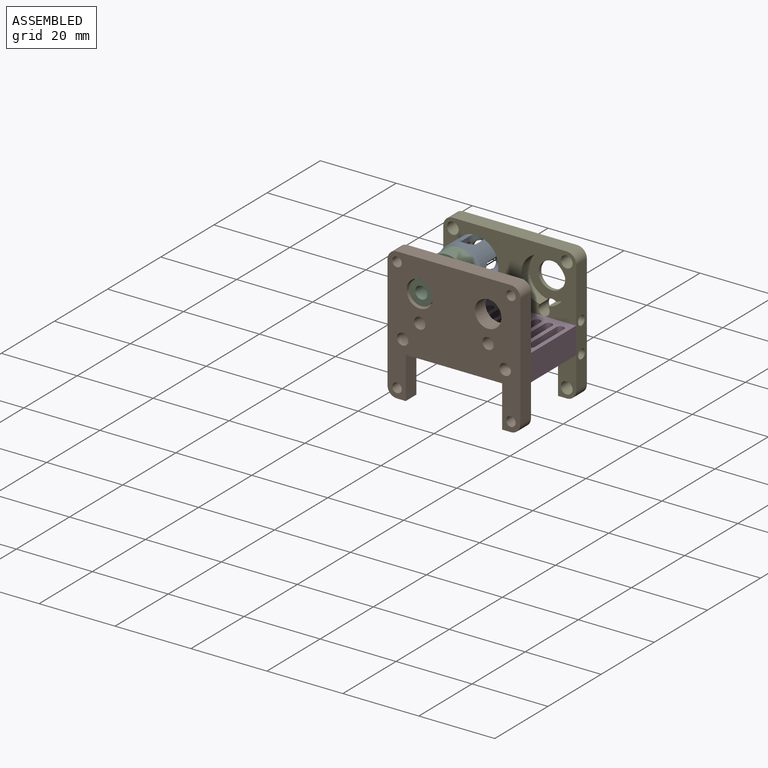
[diagram: assembled view]
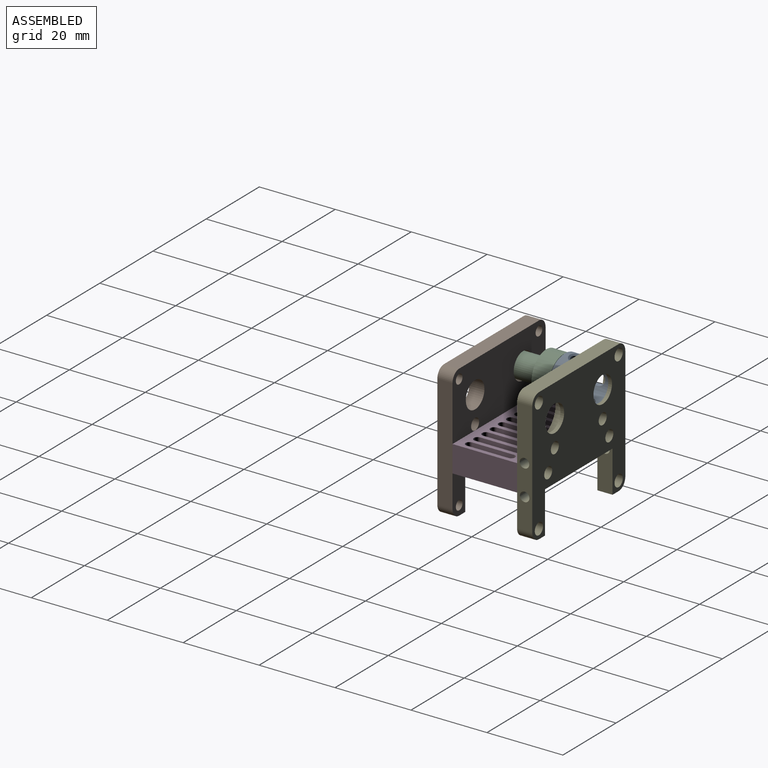
[diagram: assembled view, second angle]
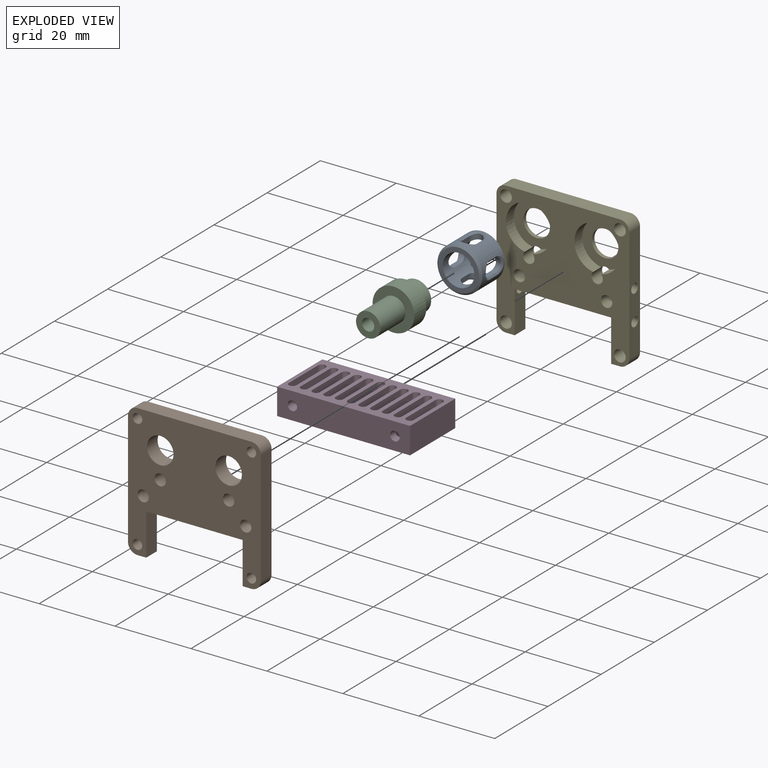
[diagram: exploded view]
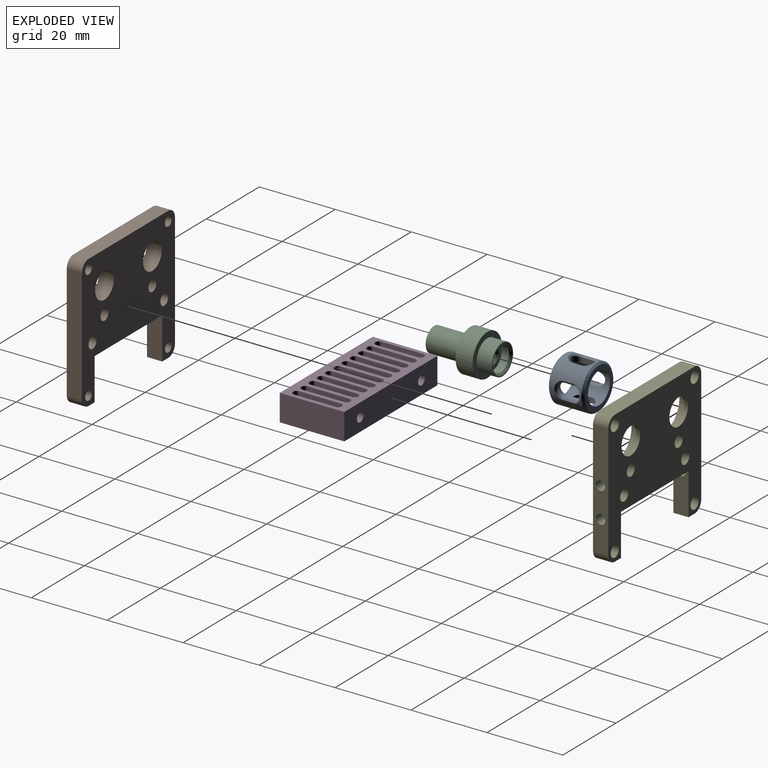
[diagram: exploded view, second angle]
ASSEMBLY  parts=5 mates=4
PART A: 38 faces, bbox 11.8x9.4x11.8 mm
  f0: cylinder r=4.15mm len=9.4mm, axis (0,-1,0), area 173.1mm2, adj f4,f5,f6,f7,f8,f9,f10,f11
  f1: cylinder r=5.9mm len=11.8mm, axis (0,-1,0), area 203.7mm2, adj f2,f3,f22,f23,f24,f25,f26,f27
  f2: cone r=5.4mm half-angle=45deg, axis (0,-1,0), area 25.1mm2, adj f1,f4
  f3: cone r=5.9mm half-angle=45deg, axis (0,1,0), area 25.1mm2, adj f1,f5
  f4: plane 10.8x10.8mm, normal (0,1,0), area 37.5mm2, adj f0,f2
  f5: plane 10.8x10.8mm, normal (0,-1,0), area 37.5mm2, adj f0,f3
  f6: cylinder r=1.75mm len=3.5mm, axis (1,0,0), area 7.4mm2, adj f0,f7,f9,f37
  f7: plane 2.5x1.35mm, normal (0,0,-1), area 3.4mm2, adj f0,f6,f8,f35
  f8: cylinder r=1.75mm len=3.5mm, axis (1,0,0), area 7.4mm2, adj f0,f7,f9,f34
  f9: plane 2.5x1.35mm, normal (0,0,1), area 3.4mm2, adj f0,f6,f8,f36
  f10: plane 2.5x1.35mm, normal (0,0,1), area 3.4mm2, adj f0,f11,f13,f27
  f11: cylinder r=1.75mm len=3.5mm, axis (1,0,0), area 7.4mm2, adj f0,f10,f12,f26
  f12: plane 2.5x1.35mm, normal (0,0,-1), area 3.4mm2, adj f0,f11,f13,f28
  f13: cylinder r=1.75mm len=3.5mm, axis (1,0,0), area 7.4mm2, adj f0,f10,f12,f29
  f14: cylinder r=1.75mm len=3.5mm, axis (0,0,1), area 6.3mm2, adj f0,f15,f17,f33
  f15: plane 2.5x1.35mm, normal (1,0,0), area 3.4mm2, adj f0,f14,f16,f31
  f16: cylinder r=1.75mm len=3.5mm, axis (0,0,1), area 6.3mm2, adj f0,f15,f17,f30
  f17: plane 2.5x1.35mm, normal (-1,0,0), area 3.4mm2, adj f0,f14,f16,f32
  f18: plane 2.5x1.35mm, normal (-1,0,0), area 3.4mm2, adj f0,f19,f21,f23
  f19: cylinder r=1.75mm len=3.5mm, axis (0,0,1), area 7.4mm2, adj f0,f18,f20,f22
  f20: plane 2.5x1.35mm, normal (1,0,0), area 3.4mm2, adj f0,f19,f21,f24
  f21: cylinder r=1.75mm len=3.5mm, axis (0,0,1), area 7.4mm2, adj f0,f18,f20,f25
  f22: bspline ~4.52x2.12mm, area 3.5mm2, adj f1,f19,f23,f24
  f23: plane 2.5x0.51mm, normal (-0.56,0,-0.83), area 1.5mm2, adj f1,f18,f22,f25
  f24: plane 2.5x0.51mm, normal (0.56,0,-0.83), area 1.5mm2, adj f1,f20,f22,f25
  f25: bspline ~4.52x2.12mm, area 3.5mm2, adj f1,f21,f23,f24
  f26: bspline ~4.52x2.12mm, area 3.5mm2, adj f1,f11,f27,f28
  f27: plane 2.5x0.51mm, normal (-0.83,0,0.56), area 1.5mm2, adj f1,f10,f26,f29
  f28: plane 2.5x0.51mm, normal (-0.83,0,-0.56), area 1.5mm2, adj f1,f12,f26,f29
  f29: bspline ~4.52x2.12mm, area 3.5mm2, adj f1,f13,f27,f28
  f30: bspline ~4.52x2.12mm, area 3.6mm2, adj f1,f16,f31,f32
  f31: plane 2.5x0.51mm, normal (0.56,0,0.83), area 1.5mm2, adj f1,f15,f30,f33
  f32: plane 2.5x0.51mm, normal (-0.56,0,0.83), area 1.5mm2, adj f1,f17,f30,f33
  f33: bspline ~4.52x2.12mm, area 3.6mm2, adj f1,f14,f31,f32
  f34: bspline ~4.52x2.12mm, area 3.5mm2, adj f1,f8,f35,f36
  f35: plane 2.5x0.51mm, normal (0.83,0,-0.56), area 1.5mm2, adj f1,f7,f34,f37
  f36: plane 2.5x0.51mm, normal (0.83,0,0.56), area 1.5mm2, adj f1,f9,f34,f37
  f37: bspline ~4.52x2.12mm, area 3.5mm2, adj f1,f6,f35,f36
PART B: 28 faces, bbox 35x4x35 mm
  f0: cylinder r=1.5mm len=4mm, axis (0,1,0), area 37.7mm2, adj f19,f20
  f1: cylinder r=1.5mm len=4mm, axis (0,1,0), area 37.7mm2, adj f19,f20
  f2: cylinder r=1.03mm len=5mm, axis (0,0,-1), area 32.2mm2, adj f3,f23
  f3: cone r=1.03mm half-angle=59deg, axis (0,0,-1), area 3.9mm2, adj f2
  f4: cylinder r=1.03mm len=5mm, axis (0,0,-1), area 32.2mm2, adj f5,f23
  f5: cone r=1.03mm half-angle=59deg, axis (0,0,-1), area 3.9mm2, adj f4
  f6: cylinder r=1.25mm len=4mm, axis (0,1,0), area 31.4mm2, adj f19,f20
  f7: cylinder r=1.25mm len=4mm, axis (0,1,0), area 31.4mm2, adj f19,f20
  f8: cylinder r=1.25mm len=4mm, axis (0,1,0), area 31.4mm2, adj f19,f20
  f9: cylinder r=1.25mm len=4mm, axis (0,1,0), area 31.4mm2, adj f19,f20
  f10: cylinder r=1.5mm len=4mm, axis (0,1,0), area 37.7mm2, adj f19,f20
  f11: cylinder r=1.5mm len=4mm, axis (0,1,0), area 37.7mm2, adj f19,f20
  f12: cylinder r=3.5mm len=7mm, axis (0,1,0), area 88mm2, adj f19,f20
  f13: cylinder r=3.5mm len=7mm, axis (0,1,0), area 88mm2, adj f19,f20
  f14: plane 4x2.3mm, normal (0,0,-1), area 9.2mm2, adj f19,f20,f21,f24
  f15: plane 30x4mm, normal (1,0,0), area 120mm2, adj f19,f20,f26,f27
  f16: plane 4x2.3mm, normal (0,0,-1), area 9.2mm2, adj f19,f20,f22,f27
  f17: plane 30x4mm, normal (-1,0,0), area 120mm2, adj f19,f20,f24,f25
  f18: plane 30x4mm, normal (0,0,1), area 120mm2, adj f19,f20,f25,f26
  f19: plane 35x35mm, normal (0,1,0), area 815.4mm2, adj f0,f1,f6,f7,f8,f9,f10,f11
  f20: plane 35x35mm, normal (0,-1,0), area 815.4mm2, adj f0,f1,f6,f7,f8,f9,f10,f11
  f21: plane 11x4mm, normal (1,0,0), area 44mm2, adj f14,f19,f20,f23
  f22: plane 11x4mm, normal (-1,0,0), area 44mm2, adj f16,f19,f20,f23
  f23: plane 25.4x4mm, normal (0,0,-1), area 95mm2, adj f2,f4,f19,f20,f21,f22
  f24: cylinder r=2.5mm len=4mm, axis (0,-1,0), area 15.7mm2, adj f14,f17,f19,f20
  f25: cylinder r=2.5mm len=4mm, axis (0,-1,0), area 15.7mm2, adj f17,f18,f19,f20
  f26: cylinder r=2.5mm len=4mm, axis (0,-1,0), area 15.7mm2, adj f15,f18,f19,f20
  f27: cylinder r=2.5mm len=4mm, axis (0,-1,0), area 15.7mm2, adj f15,f16,f19,f20
PART C: 12 faces, bbox 11x18x11 mm
  f0: cylinder r=3.2mm len=6.4mm, axis (0,-1,0), area 40.2mm2, adj f1,f7
  f1: cone r=3.7mm half-angle=45deg, axis (0,1,0), area 15.3mm2, adj f0,f11
  f2: cylinder r=4mm len=8mm, axis (0,-1,0), area 100.5mm2, adj f10,f11
  f3: cylinder r=5.5mm len=11mm, axis (0,-1,0), area 155.5mm2, adj f9,f10
  f4: cylinder r=3.2mm len=9.5mm, axis (0,-1,0), area 191mm2, adj f8,f9
  f5: cylinder r=1.6mm len=15mm, axis (0,-1,0), area 150.8mm2, adj f6,f8
  f6: cone r=2.1mm half-angle=45deg, axis (0,1,0), area 8.2mm2, adj f5,f7
  f7: plane 6.4x6.4mm, normal (0,1,0), area 18.3mm2, adj f0,f6
  f8: plane 6.4x6.4mm, normal (0,-1,0), area 24.1mm2, adj f4,f5
  f9: plane 11x11mm, normal (0,-1,0), area 62.9mm2, adj f3,f4
  f10: plane 11x11mm, normal (0,1,0), area 44.8mm2, adj f2,f3
  f11: plane 8x8mm, normal (0,1,0), area 7.3mm2, adj f1,f2
PART D: 58 faces, bbox 37.5x19.5x9.5 mm
  f0: cylinder r=1.25mm len=5mm, axis (0,1,0), area 27mm2, adj f6,f14,f50,f57
  f1: cylinder r=1.25mm len=5mm, axis (0,1,0), area 25.8mm2, adj f7,f14,f20,f22,f23,f56
  f2: cone r=1.25mm half-angle=59deg, axis (0,-1,0), area 2.9mm2, adj f3,f51,f53
  f3: cylinder r=1.25mm len=5mm, axis (0,-1,0), area 24.1mm2, adj f2,f8,f15,f51,f53,f54
  f4: cone r=1.25mm half-angle=59deg, axis (0,-1,0), area 2.8mm2, adj f5,f17,f21
  f5: cylinder r=1.25mm len=5mm, axis (0,-1,0), area 24.4mm2, adj f4,f9,f15,f17,f18,f21
  f6: cylinder r=1mm len=7mm, axis (0,0,-1), area 17.8mm2, adj f0,f11,f13,f50,f51
  f7: cylinder r=1mm len=7mm, axis (0,0,-1), area 18.1mm2, adj f1,f11,f13,f20,f21
  f8: cylinder r=1mm len=7mm, axis (0,0,-1), area 19.4mm2, adj f3,f11,f13,f50,f51
  f9: cylinder r=1mm len=7mm, axis (0,0,-1), area 18.9mm2, adj f5,f11,f13,f20,f21
  f10: plane 17x7mm, normal (-1,0,0), area 119mm2, adj f11,f13,f14,f15
  f11: plane 35x17mm, normal (0,0,1), area 318.4mm2, adj f6,f7,f8,f9,f10,f12,f14,f15
  f12: plane 17x7mm, normal (1,0,0), area 119mm2, adj f11,f13,f14,f15
  f13: plane 35x17mm, normal (0,0,-1), area 318.4mm2, adj f6,f7,f8,f9,f10,f12,f14,f15
  f14: plane 35x7mm, normal (0,1,0), area 235.2mm2, adj f0,f1,f10,f11,f12,f13
  f15: plane 35x7mm, normal (0,-1,0), area 235.2mm2, adj f3,f5,f10,f11,f12,f13
  f16: plane 11x7mm, normal (1,0,0), area 77mm2, adj f11,f13,f18,f19
  f17: plane 11x7mm, normal (-1,0,0), area 73.9mm2, adj f4,f5,f11,f13,f18,f19
  f18: cylinder r=1mm len=7mm, axis (0,0,-1), area 21.1mm2, adj f5,f11,f13,f16,f17
  f19: cylinder r=1mm len=7mm, axis (0,0,-1), area 22mm2, adj f11,f13,f16,f17
  f20: plane 11x7mm, normal (-1,0,0), area 70.8mm2, adj f1,f7,f9,f11,f13,f56
  f21: plane 11x7mm, normal (1,0,0), area 71.1mm2, adj f4,f5,f7,f9,f11,f13
  f22: cylinder r=1mm len=7mm, axis (0,0,-1), area 21.7mm2, adj f1,f11,f13,f23,f25
  f23: plane 11.16x7.16mm, normal (1,0,0), area 75.3mm2, adj f1,f11,f13,f22,f24,f56
  f24: cylinder r=1mm len=7mm, axis (0,0,-1), area 22mm2, adj f11,f13,f23,f25
  f25: plane 11x7mm, normal (-1,0,0), area 77mm2, adj f11,f13,f22,f24
  f26: cylinder r=1mm len=7mm, axis (0,0,-1), area 22mm2, adj f11,f13,f27,f29
  f27: plane 11x7mm, normal (1,0,0), area 77mm2, adj f11,f13,f26,f28
  f28: cylinder r=1mm len=7mm, axis (0,0,-1), area 22mm2, adj f11,f13,f27,f29
  f29: plane 11x7mm, normal (-1,0,0), area 77mm2, adj f11,f13,f26,f28
  f30: cylinder r=1mm len=7mm, axis (0,0,-1), area 22mm2, adj f11,f13,f31,f33
  f31: plane 11x7mm, normal (1,0,0), area 77mm2, adj f11,f13,f30,f32
  f32: cylinder r=1mm len=7mm, axis (0,0,-1), area 22mm2, adj f11,f13,f31,f33
  f33: plane 11x7mm, normal (-1,0,0), area 77mm2, adj f11,f13,f30,f32
  f34: cylinder r=1mm len=7mm, axis (0,0,-1), area 22mm2, adj f11,f13,f35,f37
  f35: plane 11x7mm, normal (1,0,0), area 77mm2, adj f11,f13,f34,f36
  f36: cylinder r=1mm len=7mm, axis (0,0,-1), area 22mm2, adj f11,f13,f35,f37
  f37: plane 11x7mm, normal (-1,0,0), area 77mm2, adj f11,f13,f34,f36
  f38: cylinder r=1mm len=7mm, axis (0,0,-1), area 22mm2, adj f11,f13,f39,f41
  f39: plane 11x7mm, normal (1,0,0), area 77mm2, adj f11,f13,f38,f40
  f40: cylinder r=1mm len=7mm, axis (0,0,-1), area 22mm2, adj f11,f13,f39,f41
  f41: plane 11x7mm, normal (-1,0,0), area 77mm2, adj f11,f13,f38,f40
  f42: cylinder r=1mm len=7mm, axis (0,0,-1), area 22mm2, adj f11,f13,f43,f45
  f43: plane 11x7mm, normal (1,0,0), area 77mm2, adj f11,f13,f42,f44
  f44: cylinder r=1mm len=7mm, axis (0,0,-1), area 22mm2, adj f11,f13,f43,f45
  f45: plane 11x7mm, normal (-1,0,0), area 77mm2, adj f11,f13,f42,f44
  f46: cylinder r=1mm len=7mm, axis (0,0,-1), area 22mm2, adj f11,f13,f47,f49
  f47: plane 11x7mm, normal (1,0,0), area 77mm2, adj f11,f13,f46,f48
  f48: cylinder r=1mm len=7mm, axis (0,0,-1), area 22mm2, adj f11,f13,f47,f49
  f49: plane 11x7mm, normal (-1,0,0), area 77mm2, adj f11,f13,f46,f48
  f50: plane 13.47x9.47mm, normal (1,0,0), area 71.2mm2, adj f0,f6,f8,f11,f13,f57
  f51: plane 11x7mm, normal (-1,0,0), area 71.2mm2, adj f2,f3,f6,f8,f11,f13
  f52: cylinder r=1mm len=7mm, axis (0,0,-1), area 22mm2, adj f11,f13,f53,f55
  f53: plane 11x7mm, normal (1,0,0), area 73.3mm2, adj f2,f3,f11,f13,f52,f54
  f54: cylinder r=1mm len=7mm, axis (0,0,-1), area 20.8mm2, adj f3,f11,f13,f53,f55
  f55: plane 11x7mm, normal (-1,0,0), area 77mm2, adj f11,f13,f52,f54
  f56: cone r=1.25mm half-angle=59deg, axis (0,1,0), area 2.6mm2, adj f1,f20,f23
  f57: cone r=1.25mm half-angle=59deg, axis (0,1,0), area 0mm2, adj f0,f50
PART E: 36 faces, bbox 35.5x4.5x35.5 mm
  f0: cylinder r=1.25mm len=6mm, axis (1,0,0), area 41.2mm2, adj f18,f25,f26,f35
  f1: cylinder r=1.25mm len=6mm, axis (1,0,0), area 47.1mm2, adj f2,f18
  f2: cone r=1.25mm half-angle=59deg, axis (1,0,0), area 5.7mm2, adj f1
  f3: cone r=1.25mm half-angle=59deg, axis (-1,0,0), area 1mm2, adj f4,f26
  f4: cylinder r=1.25mm len=6mm, axis (-1,0,0), area 41.2mm2, adj f3,f20,f24,f26
  f5: cylinder r=1.25mm len=6mm, axis (-1,0,0), area 47.1mm2, adj f6,f20
  f6: cone r=1.25mm half-angle=59deg, axis (-1,0,0), area 5.7mm2, adj f5
  f7: cylinder r=1.5mm len=4mm, axis (0,1,0), area 30.9mm2, adj f22,f23,f29,f30
  f8: cylinder r=1.5mm len=4mm, axis (0,1,0), area 30.9mm2, adj f22,f23,f27,f28
  f9: cylinder r=1.5mm len=4mm, axis (0,1,0), area 37.7mm2, adj f22,f23
  f10: cylinder r=1.5mm len=4mm, axis (0,1,0), area 37.7mm2, adj f22,f23
  f11: cylinder r=1.55mm len=4mm, axis (0,1,0), area 39mm2, adj f22,f23
  f12: cylinder r=1.55mm len=4mm, axis (0,1,0), area 39mm2, adj f22,f23
  f13: cylinder r=1.55mm len=4mm, axis (0,1,0), area 39mm2, adj f22,f23
  f14: cylinder r=1.55mm len=4mm, axis (0,1,0), area 39mm2, adj f22,f23
  f15: cylinder r=3.5mm len=7mm, axis (0,1,0), area 22mm2, adj f22,f27
  f16: cylinder r=3.5mm len=7mm, axis (0,1,0), area 22mm2, adj f22,f29
  f17: plane 4x2.3mm, normal (0,0,-1), area 9.2mm2, adj f22,f23,f24,f32
  f18: plane 30x4mm, normal (1,0,0), area 110.2mm2, adj f0,f1,f22,f23,f31,f34
  f19: plane 4x2.3mm, normal (0,0,-1), area 9.2mm2, adj f22,f23,f25,f31
  f20: plane 30x4mm, normal (-1,0,0), area 110.2mm2, adj f4,f5,f22,f23,f32,f33
  f21: plane 30x4mm, normal (0,0,1), area 120mm2, adj f22,f23,f33,f34
  f22: plane 35x35mm, normal (0,1,0), area 804.8mm2, adj f7,f8,f9,f10,f11,f12,f13,f14
  f23: plane 35x35mm, normal (0,-1,0), area 657mm2, adj f7,f8,f9,f10,f11,f12,f13,f14
  f24: plane 11x4mm, normal (1,0,0), area 40.3mm2, adj f4,f17,f22,f23,f26
  f25: plane 11x4mm, normal (-1,0,0), area 40.3mm2, adj f0,f19,f22,f23,f26
  f26: plane 25.93x4.53mm, normal (0,0,-1), area 94.8mm2, adj f0,f3,f4,f22,f23,f24,f25,f35
  f27: plane 12x11.91mm, normal (0,-1,0), area 73.9mm2, adj f8,f15,f28
  f28: cylinder r=6mm len=12mm, axis (0,-1,0), area 106.9mm2, adj f8,f23,f27
  f29: plane 12x11.91mm, normal (0,-1,0), area 73.9mm2, adj f7,f16,f30
  f30: cylinder r=6mm len=12mm, axis (0,-1,0), area 106.9mm2, adj f7,f23,f29
  f31: cylinder r=2.5mm len=4mm, axis (0,-1,0), area 15.7mm2, adj f18,f19,f22,f23
  f32: cylinder r=2.5mm len=4mm, axis (0,-1,0), area 15.7mm2, adj f17,f20,f22,f23
  f33: cylinder r=2.5mm len=4mm, axis (0,-1,0), area 15.7mm2, adj f20,f21,f22,f23
  f34: cylinder r=2.5mm len=4mm, axis (0,-1,0), area 15.7mm2, adj f18,f21,f22,f23
  f35: cone r=1.25mm half-angle=59deg, axis (1,0,0), area 1.4mm2, adj f0,f26
PLACE A t=(-29.8,-12.09,1.74)mm
PLACE B t=(-20.8,-31.39,-7.31)mm
PLACE C t=(-29.8,-30.79,1.74)mm
PLACE D t=(-10.72,-27.39,-7.51)mm
PLACE E t=(-20.8,-10.39,-7.31)mm
MATE fastened C.f0 <-> A.f0  axis (0,1,0) through (-29.8,-16.79,1.74)mm
MATE fastened B.f0 <-> D.f2  axis (0,1,0) through (-7.3,-27.39,-10.31)mm
MATE fastened E.f9 <-> D.f0  axis (0,-1,0) through (-9.3,-10.39,-10.31)mm
MATE fastened A.f0 <-> E.f27  axis (0,1,0) through (-29.8,-7.39,1.74)mm
